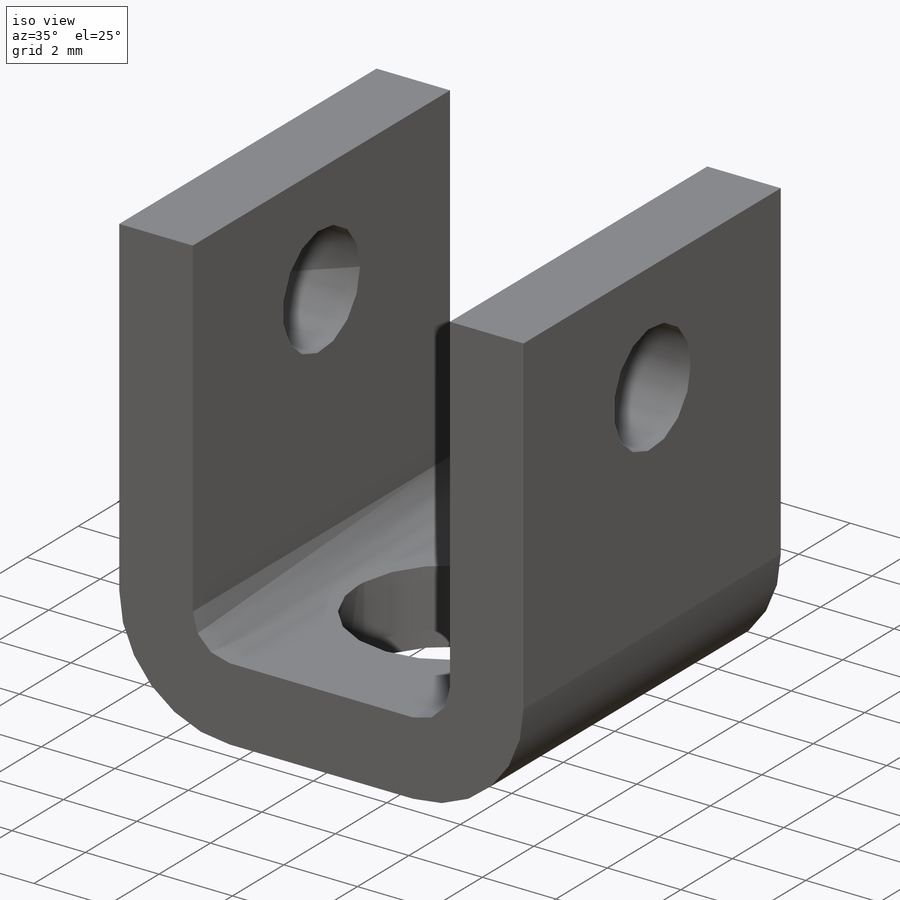
[diagram: iso view]
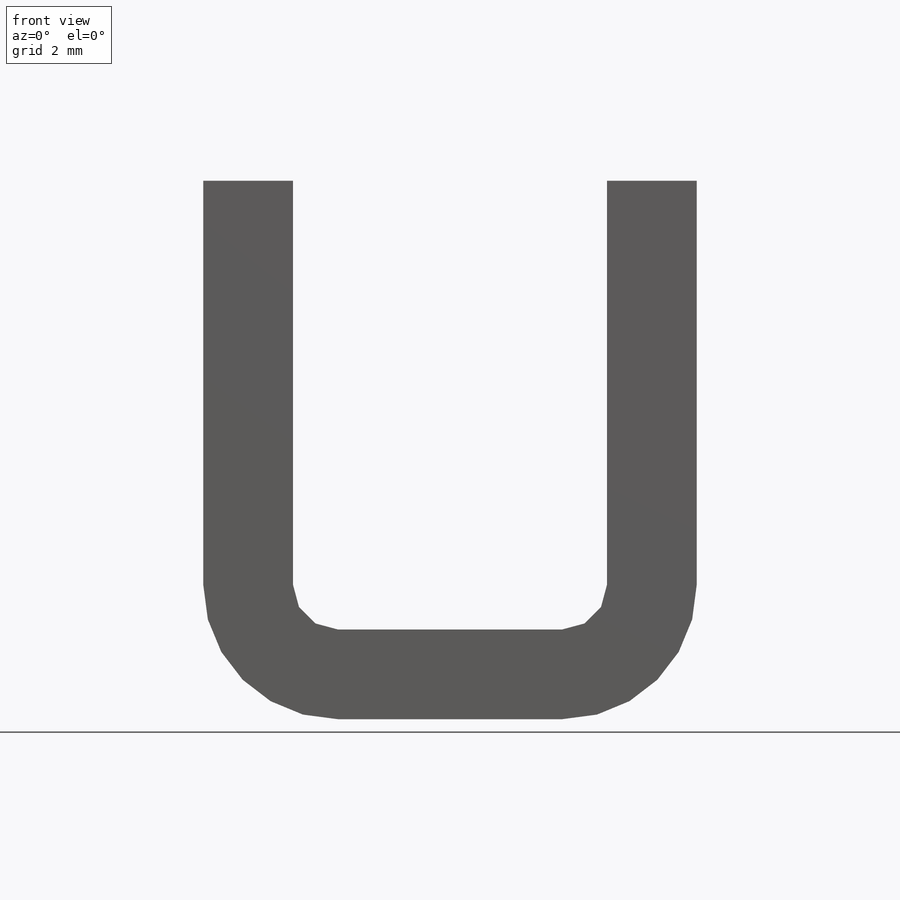
[diagram: front view]
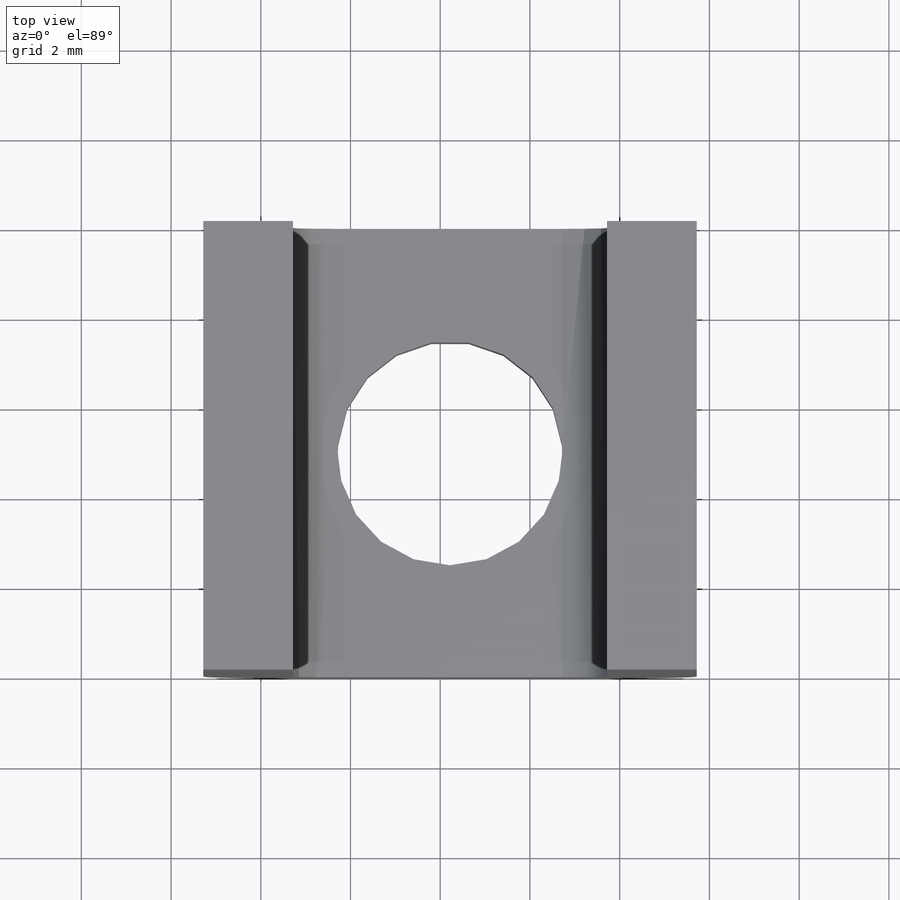
[diagram: top view]
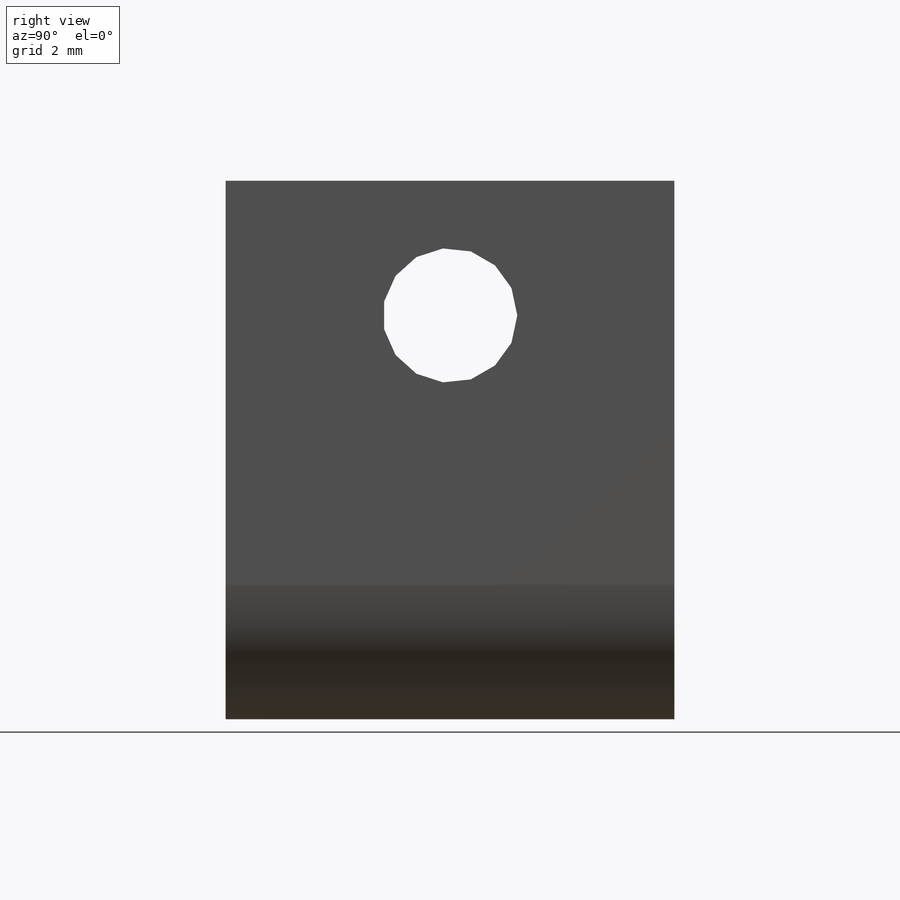
[diagram: right view]
SOLIDWORKS PART (.sldprt)
format: sldprt  version: not decoded by parser v0  size: 199,680 bytes
history: native  units: mm
features: sketch x6, plane x3, cut_extrude x2, material x1, sheet_metal_op x1 + 2 further entries (+12 scaffold rows collapsed)
feature tree (27):
  scaffold x12  (default folders/planes/origin — collapsed)
  material  "Matériau <non spécifié>"
  plane  "Face"
  plane  "Dessus"
  plane  "Droite"
  sketch  "Esquisse1"  dims[c1.D1=~37.098651mm c2.D1=11.0mm c2.D2=12.0mm c2.D3=12.0mm c2.D4=~34.282177mm c2.D5=~20.867991mm c3.D1=10.0mm c3.Epaisseur=2.0mm c3.D6=1.0mm c3.D7=5.0mm]
  sketch  "Esquisse3"  dims[D1=5.0mm D2=5.0mm D3=5.5mm]
  sheet_metal_op  "Tôlerie 5"
  sketch  "Esquisse-Angle5"  dims[c1.Pli dans angle9=0.0 c1.D1=0.0mm c1.D4=90.0deg c1.D5=2.0 c1.D8=0.0mm c1.D9=0.0mm c2.D1=0.0mm]
  sketch  "Esquisse-Plate5"  dims[D1=0.0mm]
  cut_extrude  "Enlèv. mat.-Extru.4"  [1 undecoded]
  sketch  "Esquisse2"  dims[D3=3.0mm D1=5.0mm D2=9.0mm]
  cut_extrude  "Enlèv. mat.-Extru.3"  [1 undecoded]
  "Etat déplié5"
  sketch  "Lignes de pliage5"
  "Dépliage-<Pli dans angle10>1"
decode coverage: 5 of 9 modeling features carry decoded parameters; 2 rows unclassified (native names shown)
note: ~ marks probable driven/reference dimensions
note: 2 parameter values undecoded
note: suppression state not decoded; provenance and decode notes live in map.json
